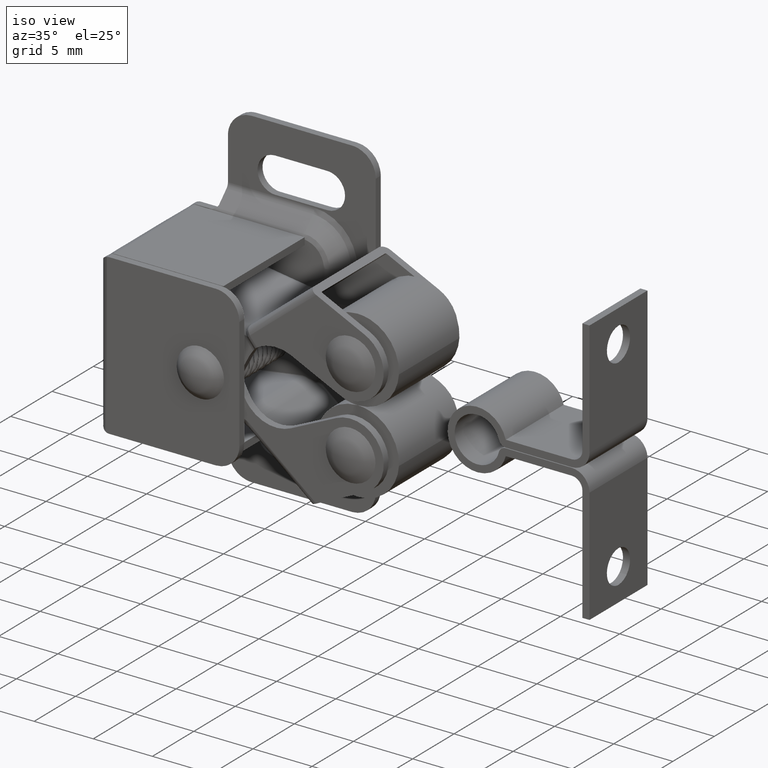
[diagram: clean part render]
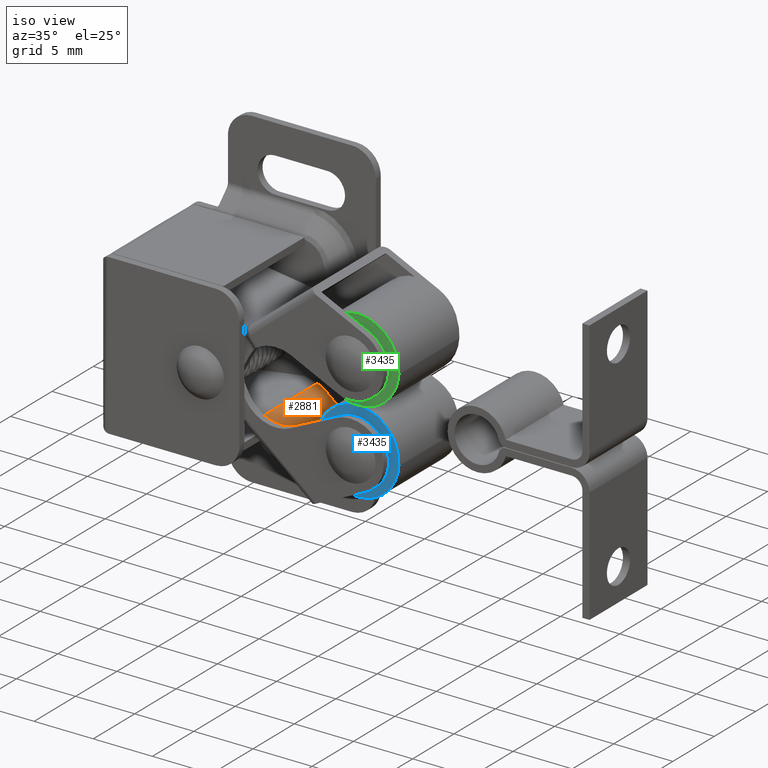
[diagram: same view with three faces highlighted in distinct colors, each labeled with its STEP entity id]
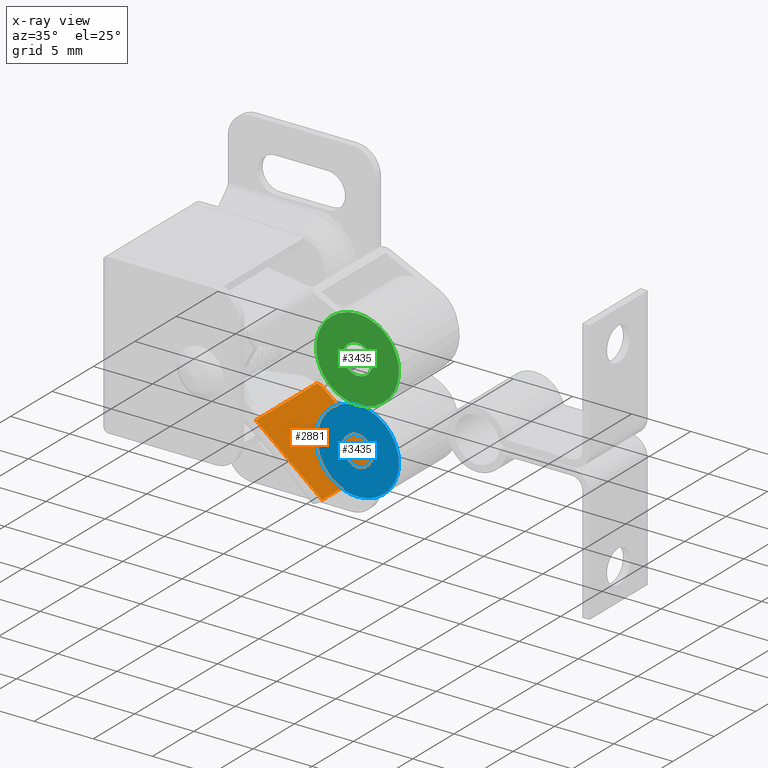
[diagram: x-ray of the same camera — body ghosted, the three highlighted faces saturated]
A machine part, iso view with three faces highlighted in distinct colors.
The next image is the same camera in x-ray (body ghosted, the three faces saturated) — at least one of them is partly hidden behind the body in this view.
Their STEP definitions:

[orange] entity #2881 — the highlighted face is a freeform B-spline surface patch.
#798=CARTESIAN_POINT('',(3.287669057536205,-3.200006000000035,-6.621513464968430));
#799=VERTEX_POINT('',#798);
#822=CARTESIAN_POINT('',(8.900848689728630,-3.200006000000035,-2.033815926524040));
#823=VERTEX_POINT('',#822);
#839=CARTESIAN_POINT('',(3.287669057536205,-3.200006000000035,-6.621513464968430));
#840=CARTESIAN_POINT('',(8.900848689728630,-3.200006000000035,-2.033815926524040));
#841=QUASI_UNIFORM_CURVE('',1,(#839,#840),.UNSPECIFIED.,.F.,.U.);
#842=EDGE_CURVE('',#799,#823,#841,.T.);
#975=CARTESIAN_POINT('',(3.292481851905480,-10.549996500000020,-6.617579928839581));
#976=VERTEX_POINT('',#975);
#1009=CARTESIAN_POINT('',(3.287669057536205,-10.539444872453620,-6.621513464968430));
#1010=VERTEX_POINT('',#1009);
#1026=CARTESIAN_POINT('',(3.292481851905491,-10.549996500000010,-6.617579928839571));
#1027=CARTESIAN_POINT('',(3.290111189149844,-10.544693499380704,-6.619517490863452));
#1028=CARTESIAN_POINT('',(3.287669057536211,-10.539444872453620,-6.621513464968426));
#1036=(BOUNDED_CURVE()B_SPLINE_CURVE(2,(#1026,#1027,#1028),.UNSPECIFIED.,.F.,.U.)CURVE()GEOMETRIC_REPRESENTATION_ITEM()QUASI_UNIFORM_CURVE()RATIONAL_B_SPLINE_CURVE((1.0,0.999961740967104,1.0))REPRESENTATION_ITEM(''));
#1037=EDGE_CURVE('',#976,#1010,#1036,.T.);
#1174=CARTESIAN_POINT('',(3.627757587536100,-10.799994000000000,-6.343556332974010));
#1175=VERTEX_POINT('',#1174);
#1205=CARTESIAN_POINT('',(3.627757587536100,-10.799994000000000,-6.343556332974010));
#1206=CARTESIAN_POINT('',(3.404241175503736,-10.799994000000000,-6.526238121278420));
#1207=CARTESIAN_POINT('',(3.292481851905486,-10.549996500000020,-6.617579928839572));
#1215=(BOUNDED_CURVE()B_SPLINE_CURVE(2,(#1205,#1206,#1207),.UNSPECIFIED.,.F.,.U.)CURVE()GEOMETRIC_REPRESENTATION_ITEM()QUASI_UNIFORM_CURVE()RATIONAL_B_SPLINE_CURVE((1.0,0.866026847158918,1.0))REPRESENTATION_ITEM(''));
#1216=EDGE_CURVE('',#1175,#976,#1215,.T.);
#1301=CARTESIAN_POINT('',(8.900848689728630,-10.799993999999980,-2.033815926524040));
#1302=VERTEX_POINT('',#1301);
#1324=CARTESIAN_POINT('',(8.900848689728630,-10.799993999999980,-2.033815926524040));
#1325=CARTESIAN_POINT('',(3.627757587536100,-10.799994000000000,-6.343556332974010));
#1326=QUASI_UNIFORM_CURVE('',1,(#1324,#1325),.UNSPECIFIED.,.F.,.U.);
#1327=EDGE_CURVE('',#1302,#1175,#1326,.T.);
#2853=CARTESIAN_POINT('',(8.900848689728630,-3.200006000000035,-2.033815926524040));
#2854=CARTESIAN_POINT('',(8.900848689728630,-10.799993999999980,-2.033815926524040));
#2855=QUASI_UNIFORM_CURVE('',1,(#2853,#2854),.UNSPECIFIED.,.F.,.U.);
#2856=EDGE_CURVE('',#823,#1302,#2855,.T.);
#2864=CARTESIAN_POINT('',(9.181226843399667,-11.179613885272500,-1.804660572568656));
#2865=CARTESIAN_POINT('',(3.007290602750746,-11.179613885272500,-6.850669065027088));
#2866=CARTESIAN_POINT('',(9.181226843399667,-2.820386386524292,-1.804660572568656));
#2867=CARTESIAN_POINT('',(3.007290602750746,-2.820386386524292,-6.850669065027088));
#2868=B_SPLINE_SURFACE_WITH_KNOTS('',1,1,((#2864,#2866),(#2865,#2867)),.UNSPECIFIED.,.F.,.F.,.U.,(2,2),(2,2),(0.0,7.973687378469308),(0.0,8.359227498748203),.UNSPECIFIED.);
#2869=ORIENTED_EDGE('',*,*,#1216,.T.);
#2870=ORIENTED_EDGE('',*,*,#1037,.T.);
#2871=CARTESIAN_POINT('',(3.287669057536205,-3.200006000000035,-6.621513464968430));
#2872=CARTESIAN_POINT('',(3.287669057536205,-10.539444872453620,-6.621513464968430));
#2873=QUASI_UNIFORM_CURVE('',1,(#2871,#2872),.UNSPECIFIED.,.F.,.U.);
#2874=EDGE_CURVE('',#799,#1010,#2873,.T.);
#2875=ORIENTED_EDGE('',*,*,#2874,.F.);
#2876=ORIENTED_EDGE('',*,*,#842,.T.);
#2877=ORIENTED_EDGE('',*,*,#2856,.T.);
#2878=ORIENTED_EDGE('',*,*,#1327,.T.);
#2879=EDGE_LOOP('',(#2869,#2870,#2875,#2876,#2877,#2878));
#2880=FACE_OUTER_BOUND('',#2879,.T.);
#2881=ADVANCED_FACE('',(#2880),#2868,.T.);

[blue] entity #3435 — the highlighted face is a freeform B-spline surface patch.
#3068=CARTESIAN_POINT('',(11.026620923700010,-10.649993000000039,-5.517965890940600));
#3069=VERTEX_POINT('',#3068);
#3070=CARTESIAN_POINT('',(10.549995999999901,-10.649993000000000,-6.500000000000000));
#3071=VERTEX_POINT('',#3070);
#3072=CARTESIAN_POINT('',(11.026620923700014,-10.649993000000036,-5.517965890940600));
#3073=CARTESIAN_POINT('',(10.549995999999901,-10.649993000000000,-5.893319285829330));
#3074=CARTESIAN_POINT('',(10.549995999999901,-10.649993000000000,-6.500000000000000));
#3082=(BOUNDED_CURVE()B_SPLINE_CURVE(2,(#3072,#3073,#3074),.UNSPECIFIED.,.F.,.U.)B_SPLINE_CURVE_WITH_KNOTS((3,3),(0.357127367217041,0.500000000000000),.UNSPECIFIED.)CURVE()GEOMETRIC_REPRESENTATION_ITEM()RATIONAL_B_SPLINE_CURVE((0.856547284178513,0.832614298815387,1.0))REPRESENTATION_ITEM(''));
#3083=EDGE_CURVE('',#3069,#3071,#3082,.T.);
#3085=CARTESIAN_POINT('',(13.049995999999901,-10.649993000000000,-6.500000000000000));
#3086=VERTEX_POINT('',#3085);
#3087=CARTESIAN_POINT('',(10.549995999999901,-10.649993000000000,-6.500000000000000));
#3088=CARTESIAN_POINT('',(10.549995999999901,-10.649993000000002,-7.750000000000001));
#3089=CARTESIAN_POINT('',(11.799995999999901,-10.649993000000000,-7.750000000000000));
#3090=CARTESIAN_POINT('',(13.049995999999899,-10.649993000000002,-7.750000000000001));
#3091=CARTESIAN_POINT('',(13.049995999999901,-10.649993000000000,-6.500000000000000));
#3099=(BOUNDED_CURVE()B_SPLINE_CURVE(2,(#3087,#3088,#3089,#3090,#3091),.UNSPECIFIED.,.F.,.U.)B_SPLINE_CURVE_WITH_KNOTS((3,2,3),(0.500000000000000,0.750000000000000,1.0),.UNSPECIFIED.)CURVE()GEOMETRIC_REPRESENTATION_ITEM()RATIONAL_B_SPLINE_CURVE((1.0,0.707106781186548,1.0,0.707106781186548,1.0))REPRESENTATION_ITEM(''));
#3100=EDGE_CURVE('',#3071,#3086,#3099,.T.);
#3102=CARTESIAN_POINT('',(12.736191341414390,-10.649992999999990,-5.671725720118798));
#3103=VERTEX_POINT('',#3102);
#3104=CARTESIAN_POINT('',(13.049995999999901,-10.649993000000000,-6.500000000000000));
#3105=CARTESIAN_POINT('',(13.049995999999906,-10.649993000000000,-6.026417959896560));
#3106=CARTESIAN_POINT('',(12.736191341414386,-10.649992999999988,-5.671725720118799));
#3114=(BOUNDED_CURVE()B_SPLINE_CURVE(2,(#3104,#3105,#3106),.UNSPECIFIED.,.F.,.U.)B_SPLINE_CURVE_WITH_KNOTS((3,3),(0.0,0.115779762165497),.UNSPECIFIED.)CURVE()GEOMETRIC_REPRESENTATION_ITEM()RATIONAL_B_SPLINE_CURVE((1.0,0.864355571143566,0.854350179983713))REPRESENTATION_ITEM(''));
#3115=EDGE_CURVE('',#3086,#3103,#3114,.T.);
#3184=CARTESIAN_POINT('',(12.736191341414385,-10.649992999999988,-5.671725720118798));
#3185=CARTESIAN_POINT('',(12.363080568815931,-10.649993000000000,-5.249999999999999));
#3186=CARTESIAN_POINT('',(11.799995999999901,-10.649993000000000,-5.249999999999999));
#3187=CARTESIAN_POINT('',(11.366884856468765,-10.649993000000002,-5.249999999999999));
#3188=CARTESIAN_POINT('',(11.026620923700014,-10.649993000000036,-5.517965890940600));
#3196=(BOUNDED_CURVE()B_SPLINE_CURVE(2,(#3184,#3185,#3186,#3187,#3188),.UNSPECIFIED.,.F.,.U.)B_SPLINE_CURVE_WITH_KNOTS((3,2,3),(0.115779762165497,0.250000000000000,0.357127367217041),.UNSPECIFIED.)CURVE()GEOMETRIC_REPRESENTATION_ITEM()RATIONAL_B_SPLINE_CURVE((0.854350179983713,0.842751210042982,1.0,0.874492482371161,0.856547284178513))REPRESENTATION_ITEM(''));
#3197=EDGE_CURVE('',#3103,#3069,#3196,.T.);
#3254=CARTESIAN_POINT('',(8.324462657731980,-10.649993000000020,-6.086880178660010));
#3255=VERTEX_POINT('',#3254);
#3256=CARTESIAN_POINT('',(11.799995999999901,-10.649993000000020,-10.0));
#3257=VERTEX_POINT('',#3256);
#3258=CARTESIAN_POINT('',(8.324462657731980,-10.649993000000020,-6.086880178660010));
#3259=CARTESIAN_POINT('',(8.299995999999903,-10.649993000000022,-6.292715581176545));
#3260=CARTESIAN_POINT('',(8.299995999999901,-10.649993000000020,-6.500000000000000));
#3261=CARTESIAN_POINT('',(8.299995999999901,-10.649993000000022,-10.0));
#3262=CARTESIAN_POINT('',(11.799995999999901,-10.649993000000020,-10.0));
#3270=(BOUNDED_CURVE()B_SPLINE_CURVE(2,(#3258,#3259,#3260,#3261,#3262),.UNSPECIFIED.,.F.,.U.)B_SPLINE_CURVE_WITH_KNOTS((3,2,3),(0.229562473511624,0.250000000000000,0.500000000000000),.UNSPECIFIED.)CURVE()GEOMETRIC_REPRESENTATION_ITEM()RATIONAL_B_SPLINE_CURVE((0.956026754180007,0.976055948328938,1.0,0.707106781186547,1.0))REPRESENTATION_ITEM(''));
#3271=EDGE_CURVE('',#3255,#3257,#3270,.T.);
#3312=CARTESIAN_POINT('',(15.293467794355760,-10.649993000000020,-6.713669890345065));
#3313=VERTEX_POINT('',#3312);
#3319=CARTESIAN_POINT('',(11.799995999999901,-10.649993000000020,-10.0));
#3320=CARTESIAN_POINT('',(15.092467230443816,-10.649993000000023,-10.0));
#3321=CARTESIAN_POINT('',(15.293467794355758,-10.649993000000020,-6.713669890345065));
#3329=(BOUNDED_CURVE()B_SPLINE_CURVE(2,(#3319,#3320,#3321),.UNSPECIFIED.,.F.,.U.)B_SPLINE_CURVE_WITH_KNOTS((3,3),(0.500000000000000,0.739332962047065),.UNSPECIFIED.)CURVE()GEOMETRIC_REPRESENTATION_ITEM()RATIONAL_B_SPLINE_CURVE((1.0,0.719603993511509,0.976072041255487))REPRESENTATION_ITEM(''));
#3330=EDGE_CURVE('',#3257,#3313,#3329,.T.);
#3353=CARTESIAN_POINT('',(11.799995999999901,-10.649993000000020,-3.0));
#3354=VERTEX_POINT('',#3353);
#3355=CARTESIAN_POINT('',(11.799995999999901,-10.649993000000020,-3.0));
#3356=CARTESIAN_POINT('',(8.691385159244575,-10.649993000000022,-3.0));
#3357=CARTESIAN_POINT('',(8.324462657731980,-10.649993000000020,-6.086880178660010));
#3365=(BOUNDED_CURVE()B_SPLINE_CURVE(2,(#3355,#3356,#3357),.UNSPECIFIED.,.F.,.U.)B_SPLINE_CURVE_WITH_KNOTS((3,3),(0.0,0.229562473511624),.UNSPECIFIED.)CURVE()GEOMETRIC_REPRESENTATION_ITEM()RATIONAL_B_SPLINE_CURVE((1.0,0.731050832857610,0.956026754180007))REPRESENTATION_ITEM(''));
#3366=EDGE_CURVE('',#3354,#3255,#3365,.T.);
#3368=CARTESIAN_POINT('',(15.293467794355754,-10.649993000000023,-6.713669890345066));
#3369=CARTESIAN_POINT('',(15.299995999999897,-10.649993000000025,-6.606934673523659));
#3370=CARTESIAN_POINT('',(15.299995999999901,-10.649993000000020,-6.500000000000000));
#3371=CARTESIAN_POINT('',(15.299995999999899,-10.649993000000022,-3.000000000000000));
#3372=CARTESIAN_POINT('',(11.799995999999901,-10.649993000000020,-3.0));
#3380=(BOUNDED_CURVE()B_SPLINE_CURVE(2,(#3368,#3369,#3370,#3371,#3372),.UNSPECIFIED.,.F.,.U.)B_SPLINE_CURVE_WITH_KNOTS((3,2,3),(0.739332962047064,0.750000000000000,1.0),.UNSPECIFIED.)CURVE()GEOMETRIC_REPRESENTATION_ITEM()RATIONAL_B_SPLINE_CURVE((0.976072041255485,0.987502787675037,1.0,0.707106781186547,1.0))REPRESENTATION_ITEM(''));
#3381=EDGE_CURVE('',#3313,#3354,#3380,.T.);
#3418=CARTESIAN_POINT('',(7.950409433423565,-10.649993000000000,-2.650350013567357));
#3419=CARTESIAN_POINT('',(15.649560286360019,-10.649993000000000,-2.650350013567357));
#3420=CARTESIAN_POINT('',(7.950409433423565,-10.649993000000000,-10.349650174187270));
#3421=CARTESIAN_POINT('',(15.649560286360019,-10.649993000000000,-10.349650174187270));
#3422=B_SPLINE_SURFACE_WITH_KNOTS('',1,1,((#3418,#3420),(#3419,#3421)),.UNSPECIFIED.,.F.,.F.,.U.,(2,2),(2,2),(0.0,7.699150852936453),(0.0,7.699300160619915),.UNSPECIFIED.);
#3423=ORIENTED_EDGE('',*,*,#3366,.T.);
#3424=ORIENTED_EDGE('',*,*,#3271,.T.);
#3425=ORIENTED_EDGE('',*,*,#3330,.T.);
#3426=ORIENTED_EDGE('',*,*,#3381,.T.);
#3427=EDGE_LOOP('',(#3423,#3424,#3425,#3426));
#3428=FACE_OUTER_BOUND('',#3427,.T.);
#3429=ORIENTED_EDGE('',*,*,#3100,.F.);
#3430=ORIENTED_EDGE('',*,*,#3083,.F.);
#3431=ORIENTED_EDGE('',*,*,#3197,.F.);
#3432=ORIENTED_EDGE('',*,*,#3115,.F.);
#3433=EDGE_LOOP('',(#3429,#3430,#3431,#3432));
#3434=FACE_BOUND('',#3433,.T.);
#3435=ADVANCED_FACE('',(#3428,#3434),#3422,.F.);

[green] entity #3435 — the highlighted face is a freeform B-spline surface patch.
#3068=CARTESIAN_POINT('',(11.026620923700010,-10.649993000000039,-5.517965890940600));
#3069=VERTEX_POINT('',#3068);
#3070=CARTESIAN_POINT('',(10.549995999999901,-10.649993000000000,-6.500000000000000));
#3071=VERTEX_POINT('',#3070);
#3072=CARTESIAN_POINT('',(11.026620923700014,-10.649993000000036,-5.517965890940600));
#3073=CARTESIAN_POINT('',(10.549995999999901,-10.649993000000000,-5.893319285829330));
#3074=CARTESIAN_POINT('',(10.549995999999901,-10.649993000000000,-6.500000000000000));
#3082=(BOUNDED_CURVE()B_SPLINE_CURVE(2,(#3072,#3073,#3074),.UNSPECIFIED.,.F.,.U.)B_SPLINE_CURVE_WITH_KNOTS((3,3),(0.357127367217041,0.500000000000000),.UNSPECIFIED.)CURVE()GEOMETRIC_REPRESENTATION_ITEM()RATIONAL_B_SPLINE_CURVE((0.856547284178513,0.832614298815387,1.0))REPRESENTATION_ITEM(''));
#3083=EDGE_CURVE('',#3069,#3071,#3082,.T.);
#3085=CARTESIAN_POINT('',(13.049995999999901,-10.649993000000000,-6.500000000000000));
#3086=VERTEX_POINT('',#3085);
#3087=CARTESIAN_POINT('',(10.549995999999901,-10.649993000000000,-6.500000000000000));
#3088=CARTESIAN_POINT('',(10.549995999999901,-10.649993000000002,-7.750000000000001));
#3089=CARTESIAN_POINT('',(11.799995999999901,-10.649993000000000,-7.750000000000000));
#3090=CARTESIAN_POINT('',(13.049995999999899,-10.649993000000002,-7.750000000000001));
#3091=CARTESIAN_POINT('',(13.049995999999901,-10.649993000000000,-6.500000000000000));
#3099=(BOUNDED_CURVE()B_SPLINE_CURVE(2,(#3087,#3088,#3089,#3090,#3091),.UNSPECIFIED.,.F.,.U.)B_SPLINE_CURVE_WITH_KNOTS((3,2,3),(0.500000000000000,0.750000000000000,1.0),.UNSPECIFIED.)CURVE()GEOMETRIC_REPRESENTATION_ITEM()RATIONAL_B_SPLINE_CURVE((1.0,0.707106781186548,1.0,0.707106781186548,1.0))REPRESENTATION_ITEM(''));
#3100=EDGE_CURVE('',#3071,#3086,#3099,.T.);
#3102=CARTESIAN_POINT('',(12.736191341414390,-10.649992999999990,-5.671725720118798));
#3103=VERTEX_POINT('',#3102);
#3104=CARTESIAN_POINT('',(13.049995999999901,-10.649993000000000,-6.500000000000000));
#3105=CARTESIAN_POINT('',(13.049995999999906,-10.649993000000000,-6.026417959896560));
#3106=CARTESIAN_POINT('',(12.736191341414386,-10.649992999999988,-5.671725720118799));
#3114=(BOUNDED_CURVE()B_SPLINE_CURVE(2,(#3104,#3105,#3106),.UNSPECIFIED.,.F.,.U.)B_SPLINE_CURVE_WITH_KNOTS((3,3),(0.0,0.115779762165497),.UNSPECIFIED.)CURVE()GEOMETRIC_REPRESENTATION_ITEM()RATIONAL_B_SPLINE_CURVE((1.0,0.864355571143566,0.854350179983713))REPRESENTATION_ITEM(''));
#3115=EDGE_CURVE('',#3086,#3103,#3114,.T.);
#3184=CARTESIAN_POINT('',(12.736191341414385,-10.649992999999988,-5.671725720118798));
#3185=CARTESIAN_POINT('',(12.363080568815931,-10.649993000000000,-5.249999999999999));
#3186=CARTESIAN_POINT('',(11.799995999999901,-10.649993000000000,-5.249999999999999));
#3187=CARTESIAN_POINT('',(11.366884856468765,-10.649993000000002,-5.249999999999999));
#3188=CARTESIAN_POINT('',(11.026620923700014,-10.649993000000036,-5.517965890940600));
#3196=(BOUNDED_CURVE()B_SPLINE_CURVE(2,(#3184,#3185,#3186,#3187,#3188),.UNSPECIFIED.,.F.,.U.)B_SPLINE_CURVE_WITH_KNOTS((3,2,3),(0.115779762165497,0.250000000000000,0.357127367217041),.UNSPECIFIED.)CURVE()GEOMETRIC_REPRESENTATION_ITEM()RATIONAL_B_SPLINE_CURVE((0.854350179983713,0.842751210042982,1.0,0.874492482371161,0.856547284178513))REPRESENTATION_ITEM(''));
#3197=EDGE_CURVE('',#3103,#3069,#3196,.T.);
#3254=CARTESIAN_POINT('',(8.324462657731980,-10.649993000000020,-6.086880178660010));
#3255=VERTEX_POINT('',#3254);
#3256=CARTESIAN_POINT('',(11.799995999999901,-10.649993000000020,-10.0));
#3257=VERTEX_POINT('',#3256);
#3258=CARTESIAN_POINT('',(8.324462657731980,-10.649993000000020,-6.086880178660010));
#3259=CARTESIAN_POINT('',(8.299995999999903,-10.649993000000022,-6.292715581176545));
#3260=CARTESIAN_POINT('',(8.299995999999901,-10.649993000000020,-6.500000000000000));
#3261=CARTESIAN_POINT('',(8.299995999999901,-10.649993000000022,-10.0));
#3262=CARTESIAN_POINT('',(11.799995999999901,-10.649993000000020,-10.0));
#3270=(BOUNDED_CURVE()B_SPLINE_CURVE(2,(#3258,#3259,#3260,#3261,#3262),.UNSPECIFIED.,.F.,.U.)B_SPLINE_CURVE_WITH_KNOTS((3,2,3),(0.229562473511624,0.250000000000000,0.500000000000000),.UNSPECIFIED.)CURVE()GEOMETRIC_REPRESENTATION_ITEM()RATIONAL_B_SPLINE_CURVE((0.956026754180007,0.976055948328938,1.0,0.707106781186547,1.0))REPRESENTATION_ITEM(''));
#3271=EDGE_CURVE('',#3255,#3257,#3270,.T.);
#3312=CARTESIAN_POINT('',(15.293467794355760,-10.649993000000020,-6.713669890345065));
#3313=VERTEX_POINT('',#3312);
#3319=CARTESIAN_POINT('',(11.799995999999901,-10.649993000000020,-10.0));
#3320=CARTESIAN_POINT('',(15.092467230443816,-10.649993000000023,-10.0));
#3321=CARTESIAN_POINT('',(15.293467794355758,-10.649993000000020,-6.713669890345065));
#3329=(BOUNDED_CURVE()B_SPLINE_CURVE(2,(#3319,#3320,#3321),.UNSPECIFIED.,.F.,.U.)B_SPLINE_CURVE_WITH_KNOTS((3,3),(0.500000000000000,0.739332962047065),.UNSPECIFIED.)CURVE()GEOMETRIC_REPRESENTATION_ITEM()RATIONAL_B_SPLINE_CURVE((1.0,0.719603993511509,0.976072041255487))REPRESENTATION_ITEM(''));
#3330=EDGE_CURVE('',#3257,#3313,#3329,.T.);
#3353=CARTESIAN_POINT('',(11.799995999999901,-10.649993000000020,-3.0));
#3354=VERTEX_POINT('',#3353);
#3355=CARTESIAN_POINT('',(11.799995999999901,-10.649993000000020,-3.0));
#3356=CARTESIAN_POINT('',(8.691385159244575,-10.649993000000022,-3.0));
#3357=CARTESIAN_POINT('',(8.324462657731980,-10.649993000000020,-6.086880178660010));
#3365=(BOUNDED_CURVE()B_SPLINE_CURVE(2,(#3355,#3356,#3357),.UNSPECIFIED.,.F.,.U.)B_SPLINE_CURVE_WITH_KNOTS((3,3),(0.0,0.229562473511624),.UNSPECIFIED.)CURVE()GEOMETRIC_REPRESENTATION_ITEM()RATIONAL_B_SPLINE_CURVE((1.0,0.731050832857610,0.956026754180007))REPRESENTATION_ITEM(''));
#3366=EDGE_CURVE('',#3354,#3255,#3365,.T.);
#3368=CARTESIAN_POINT('',(15.293467794355754,-10.649993000000023,-6.713669890345066));
#3369=CARTESIAN_POINT('',(15.299995999999897,-10.649993000000025,-6.606934673523659));
#3370=CARTESIAN_POINT('',(15.299995999999901,-10.649993000000020,-6.500000000000000));
#3371=CARTESIAN_POINT('',(15.299995999999899,-10.649993000000022,-3.000000000000000));
#3372=CARTESIAN_POINT('',(11.799995999999901,-10.649993000000020,-3.0));
#3380=(BOUNDED_CURVE()B_SPLINE_CURVE(2,(#3368,#3369,#3370,#3371,#3372),.UNSPECIFIED.,.F.,.U.)B_SPLINE_CURVE_WITH_KNOTS((3,2,3),(0.739332962047064,0.750000000000000,1.0),.UNSPECIFIED.)CURVE()GEOMETRIC_REPRESENTATION_ITEM()RATIONAL_B_SPLINE_CURVE((0.976072041255485,0.987502787675037,1.0,0.707106781186547,1.0))REPRESENTATION_ITEM(''));
#3381=EDGE_CURVE('',#3313,#3354,#3380,.T.);
#3418=CARTESIAN_POINT('',(7.950409433423565,-10.649993000000000,-2.650350013567357));
#3419=CARTESIAN_POINT('',(15.649560286360019,-10.649993000000000,-2.650350013567357));
#3420=CARTESIAN_POINT('',(7.950409433423565,-10.649993000000000,-10.349650174187270));
#3421=CARTESIAN_POINT('',(15.649560286360019,-10.649993000000000,-10.349650174187270));
#3422=B_SPLINE_SURFACE_WITH_KNOTS('',1,1,((#3418,#3420),(#3419,#3421)),.UNSPECIFIED.,.F.,.F.,.U.,(2,2),(2,2),(0.0,7.699150852936453),(0.0,7.699300160619915),.UNSPECIFIED.);
#3423=ORIENTED_EDGE('',*,*,#3366,.T.);
#3424=ORIENTED_EDGE('',*,*,#3271,.T.);
#3425=ORIENTED_EDGE('',*,*,#3330,.T.);
#3426=ORIENTED_EDGE('',*,*,#3381,.T.);
#3427=EDGE_LOOP('',(#3423,#3424,#3425,#3426));
#3428=FACE_OUTER_BOUND('',#3427,.T.);
#3429=ORIENTED_EDGE('',*,*,#3100,.F.);
#3430=ORIENTED_EDGE('',*,*,#3083,.F.);
#3431=ORIENTED_EDGE('',*,*,#3197,.F.);
#3432=ORIENTED_EDGE('',*,*,#3115,.F.);
#3433=EDGE_LOOP('',(#3429,#3430,#3431,#3432));
#3434=FACE_BOUND('',#3433,.T.);
#3435=ADVANCED_FACE('',(#3428,#3434),#3422,.F.);